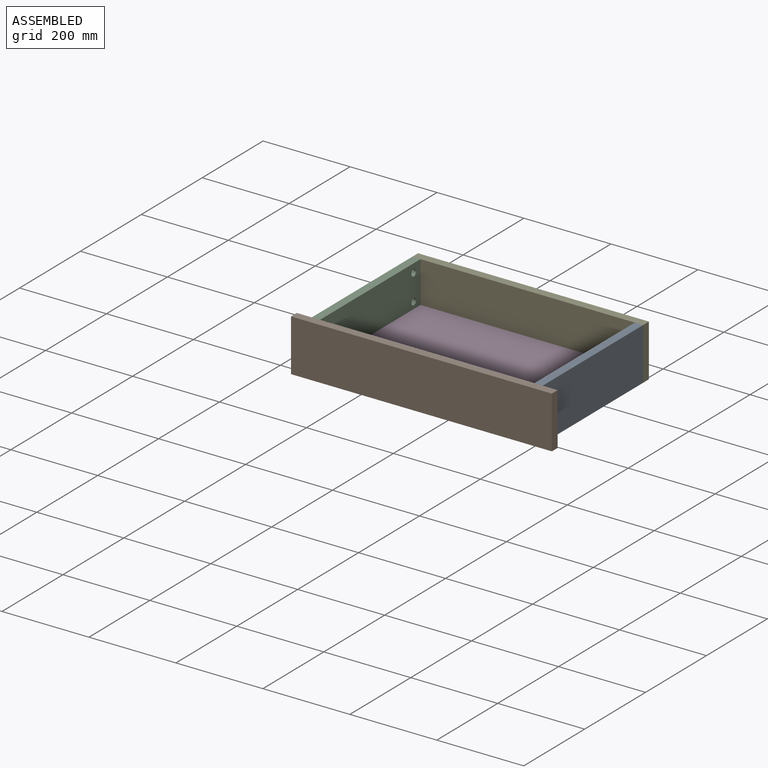
[diagram: assembled view]
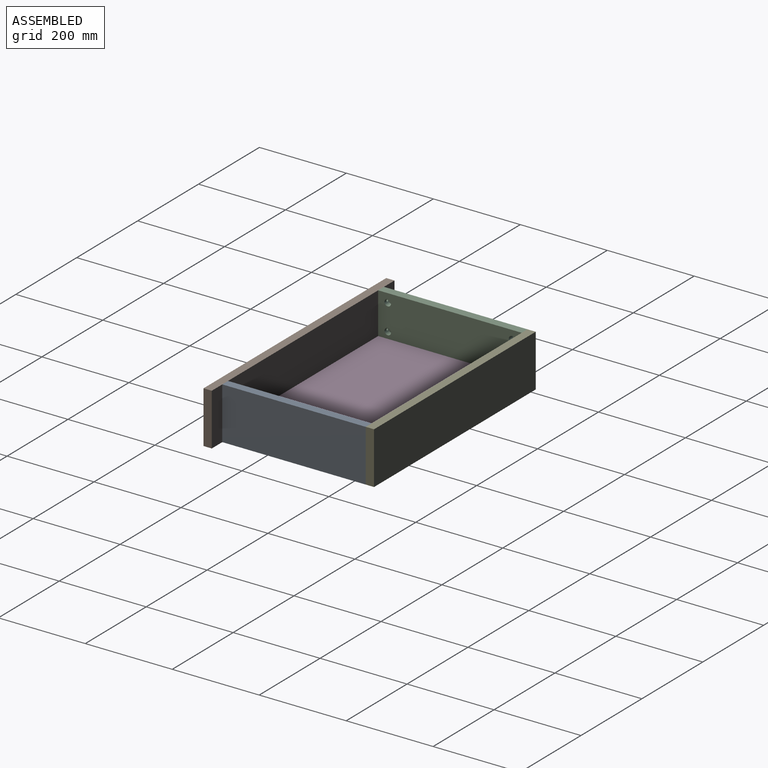
[diagram: assembled view, second angle]
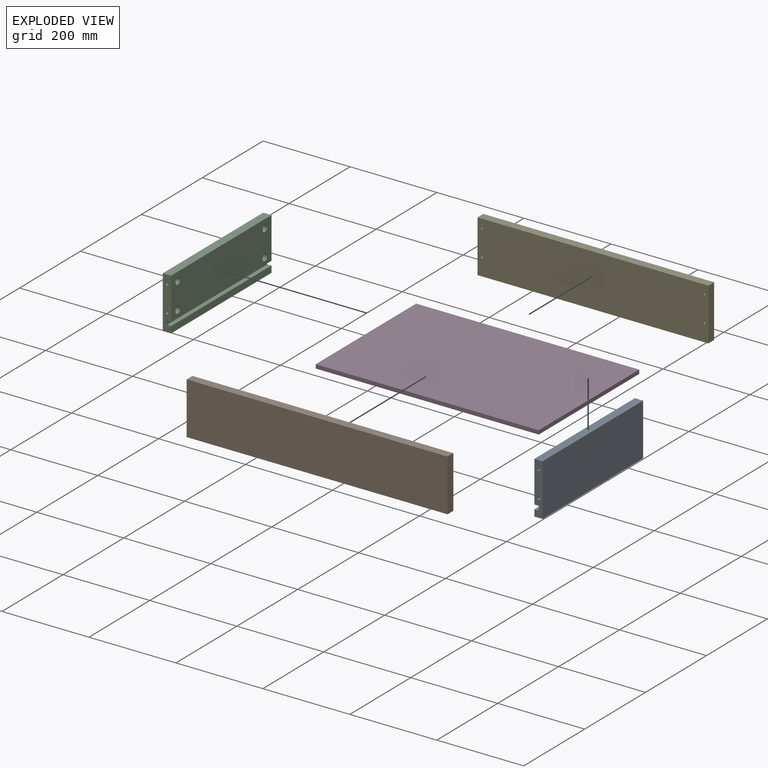
[diagram: exploded view]
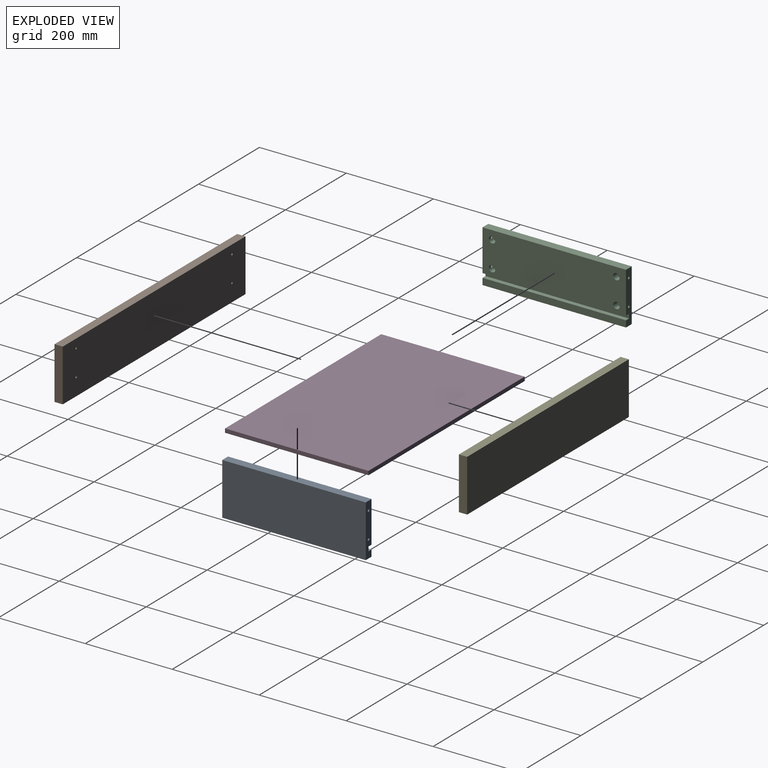
[diagram: exploded view, second angle]
ASSEMBLY  parts=5 mates=4
PART A: 22 faces, bbox 19x330x120 mm
  f0: plane 330x15mm, normal (-1,0,0), area 4950mm2, adj f1,f3,f4,f18
  f1: plane 120x19mm, normal (0,-1,0), area 2123.5mm2, adj f0,f2,f4,f5,f6,f15,f16,f17
  f2: plane 330x19mm, normal (0,0,-1), area 6270mm2, adj f1,f3,f5,f6
  f3: plane 120x19mm, normal (0,1,0), area 2123.5mm2, adj f0,f2,f4,f5,f6,f17,f18,f19
  f4: plane 330x19mm, normal (0,0,1), area 6270mm2, adj f0,f1,f3,f5
  f5: plane 330x120mm, normal (1,0,0), area 39600mm2, adj f1,f2,f3,f4
  f6: plane 330x95mm, normal (-1,0,0), area 30643.1mm2, adj f1,f2,f3,f7,f9,f11,f13,f17
  f7: cylinder r=7.5mm len=15mm, axis (-1,0,0), area 583.7mm2, adj f6,f8,f16
  f8: plane 15x15mm, normal (-1,0,0), area 176.7mm2, adj f7
  f9: cylinder r=7.5mm len=15mm, axis (-1,0,0), area 583.7mm2, adj f6,f10,f21
  f10: plane 15x15mm, normal (-1,0,0), area 176.7mm2, adj f9
  f11: cylinder r=7.5mm len=15mm, axis (-1,0,0), area 583.7mm2, adj f6,f12,f20
  f12: plane 15x15mm, normal (-1,0,0), area 176.7mm2, adj f11
  f13: cylinder r=7.5mm len=15mm, axis (-1,0,0), area 583.7mm2, adj f6,f14,f15
  f14: plane 15x15mm, normal (-1,0,0), area 176.7mm2, adj f13
  f15: cylinder r=3mm len=15.13mm, axis (0,-1,0), area 279.2mm2, adj f1,f13
  f16: cylinder r=3mm len=15.13mm, axis (0,-1,0), area 279.2mm2, adj f1,f7
  f17: plane 330x10mm, normal (0,0,1), area 3300mm2, adj f1,f3,f6,f19
  f18: plane 330x10mm, normal (0,0,-1), area 3300mm2, adj f0,f1,f3,f19
  f19: plane 330x10mm, normal (-1,0,0), area 3300mm2, adj f1,f3,f17,f18
  f20: cylinder r=3mm len=15.13mm, axis (0,1,0), area 279.2mm2, adj f3,f11
  f21: cylinder r=3mm len=15.13mm, axis (0,1,0), area 279.2mm2, adj f3,f9
PART B: 14 faces, bbox 600x19x120 mm
  f0: plane 600x19mm, normal (0,0,1), area 11400mm2, adj f1,f3,f4,f5
  f1: plane 120x19mm, normal (-1,0,0), area 2280mm2, adj f0,f2,f4,f5
  f2: plane 600x19mm, normal (0,0,-1), area 11400mm2, adj f1,f3,f4,f5
  f3: plane 120x19mm, normal (1,0,0), area 2280mm2, adj f0,f2,f4,f5
  f4: plane 600x120mm, normal (0,-1,0), area 72000mm2, adj f0,f1,f2,f3
  f5: plane 600x120mm, normal (0,1,0), area 71921.5mm2, adj f0,f1,f2,f3,f6,f8,f10,f12
  f6: cylinder r=2.5mm len=10mm, axis (0,1,0), area 157.1mm2, adj f5,f7
  f7: plane 5x5mm, normal (0,1,0), area 19.6mm2, adj f6
  f8: cylinder r=2.5mm len=10mm, axis (0,1,0), area 157.1mm2, adj f5,f9
  f9: plane 5x5mm, normal (0,1,0), area 19.6mm2, adj f8
  f10: cylinder r=2.5mm len=10mm, axis (0,1,0), area 157.1mm2, adj f5,f11
  f11: plane 5x5mm, normal (0,1,0), area 19.6mm2, adj f10
  f12: cylinder r=2.5mm len=10mm, axis (0,1,0), area 157.1mm2, adj f5,f13
  f13: plane 5x5mm, normal (0,1,0), area 19.6mm2, adj f12
PART C: same geometry as A
PART D: 6 faces, bbox 513x330x9 mm
  f0: plane 513x9mm, normal (0,1,0), area 4617mm2, adj f1,f3,f4,f5
  f1: plane 330x9mm, normal (-1,0,0), area 2970mm2, adj f0,f2,f4,f5
  f2: plane 513x9mm, normal (0,-1,0), area 4617mm2, adj f1,f3,f4,f5
  f3: plane 330x9mm, normal (1,0,0), area 2970mm2, adj f0,f2,f4,f5
  f4: plane 513x330mm, normal (0,0,1), area 169290mm2, adj f0,f1,f2,f3
  f5: plane 513x330mm, normal (0,0,-1), area 169290mm2, adj f0,f1,f2,f3
PART E: 14 faces, bbox 531x19x120 mm
  f0: plane 120x19mm, normal (1,0,0), area 2280mm2, adj f1,f3,f4,f5
  f1: plane 531x19mm, normal (0,0,1), area 10089mm2, adj f0,f2,f4,f5
  f2: plane 120x19mm, normal (-1,0,0), area 2280mm2, adj f1,f3,f4,f5
  f3: plane 531x19mm, normal (0,0,-1), area 10089mm2, adj f0,f2,f4,f5
  f4: plane 531x120mm, normal (0,-1,0), area 63641.5mm2, adj f0,f1,f2,f3,f6,f8,f10,f12
  f5: plane 531x120mm, normal (0,1,0), area 63720mm2, adj f0,f1,f2,f3
  f6: cylinder r=2.5mm len=10mm, axis (0,-1,0), area 157.1mm2, adj f4,f7
  f7: plane 5x5mm, normal (0,-1,0), area 19.6mm2, adj f6
  f8: cylinder r=2.5mm len=10mm, axis (0,-1,0), area 157.1mm2, adj f4,f9
  f9: plane 5x5mm, normal (0,-1,0), area 19.6mm2, adj f8
  f10: cylinder r=2.5mm len=10mm, axis (0,-1,0), area 157.1mm2, adj f4,f11
  f11: plane 5x5mm, normal (0,-1,0), area 19.6mm2, adj f10
  f12: cylinder r=2.5mm len=10mm, axis (0,-1,0), area 157.1mm2, adj f4,f13
  f13: plane 5x5mm, normal (0,-1,0), area 19.6mm2, adj f12
PLACE A rot(axis=(-1,0,0),180deg) t=(-207.75,267.96,522)mm
PLACE B t=(-454.25,102.96,522)mm fixed
PLACE C rot(axis=(0,1,0),180deg) t=(-700.75,267.96,522)mm
PLACE D rot(axis=(0,-1,0),180deg) t=(-454.25,267.96,487)mm
PLACE E t=(-454.25,451.96,522)mm
MATE fastened E.f10 <-> A.f21  axis (0,-1,0) through (-198.25,432.96,562)mm
MATE fastened A.f21 <-> B.f6  axis (0,-1,0) through (-198.25,102.96,562)mm
MATE fastened C.f21 <-> B.f12  axis (0,-1,0) through (-710.25,102.96,562)mm
MATE fastened D.f3 <-> C.f19  axis (-1,0,0) through (-710.75,102.96,487)mm
